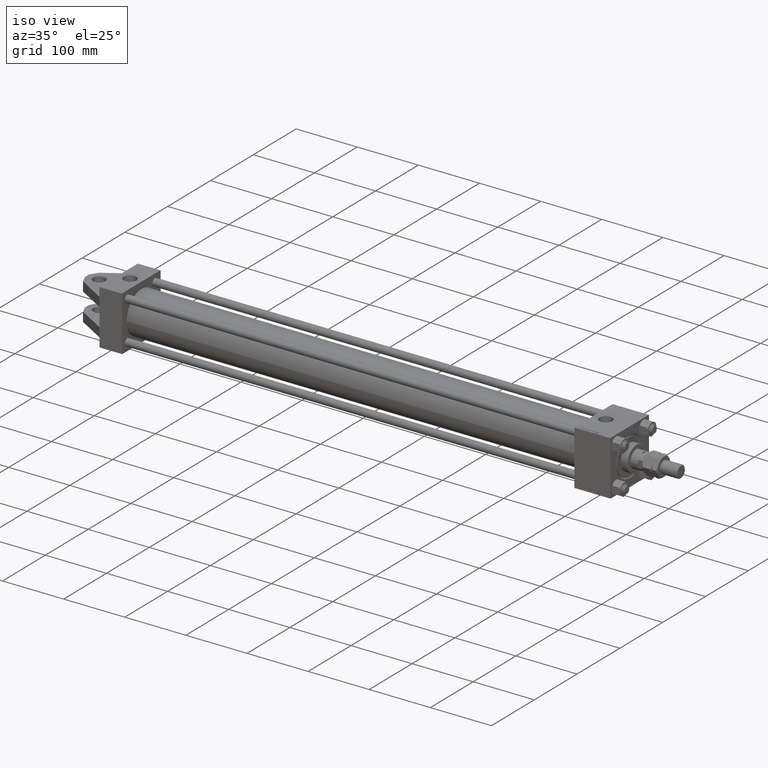
[diagram: clean part render]
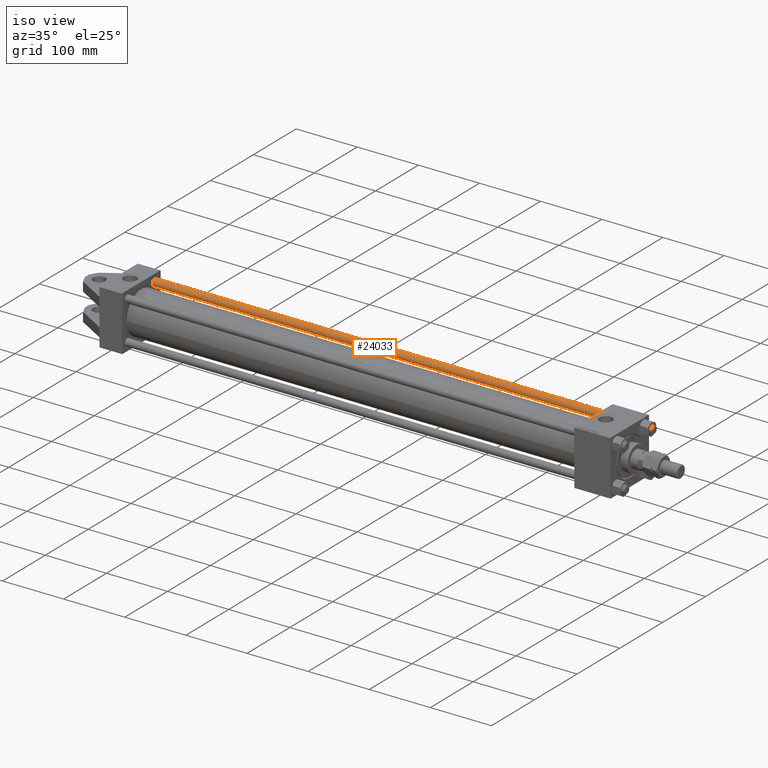
[diagram: same view with one face highlighted and labeled with its STEP entity id]
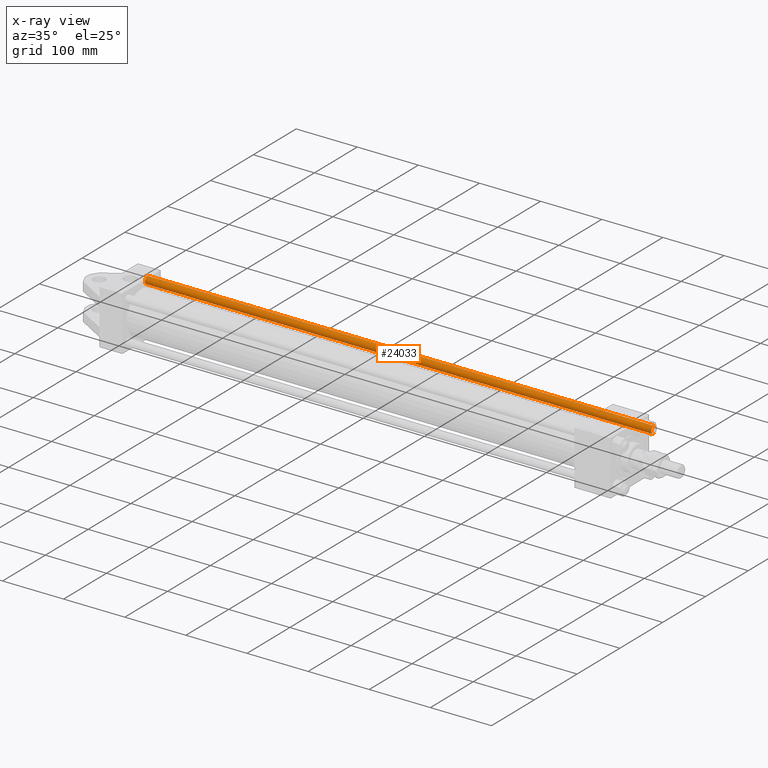
[diagram: x-ray of the same camera — body ghosted, the highlighted face saturated]
A machine part, iso view. The second image highlights one B-rep face of the part: STEP entity #24033.
The next image is the same camera in x-ray: the body ghosted, the highlighted face saturated — about 0% of this face is hidden behind the body in this view.
In plain terms, the highlighted cylindrical surface (edge-blend (fillet) strip) has radius 6 mm, axis along (-1, 0, -0).
Its self-contained STEP definition (entity closure, byte-faithful):
#200 = CARTESIAN_POINT ( 'NONE',  ( 6.000000000000000888, 7.347880794884120722E-16, 830.0000000000000000 ) ) ;
#1206 = CARTESIAN_POINT ( 'NONE',  ( 0.000000000000000000, 0.000000000000000000, 0.5000000000001669775 ) ) ;
#3835 = DIRECTION ( 'NONE',  ( -0.000000000000000000, -0.000000000000000000, -1.000000000000000000 ) ) ;
#8738 = DIRECTION ( 'NONE',  ( 1.000000000000000000, 0.000000000000000000, 0.000000000000000000 ) ) ;
#9521 = AXIS2_PLACEMENT_3D ( 'NONE', #11380, #15781, #38652 ) ;
#11380 = CARTESIAN_POINT ( 'NONE',  ( 0.000000000000000000, 0.000000000000000000, 829.5000000000001137 ) ) ;
#11995 = CIRCLE ( 'NONE', #9521, 6.000000000000000888 ) ;
#14285 = CARTESIAN_POINT ( 'NONE',  ( 6.000000000000000888, 7.347880794884120722E-16, 829.5000000000001137 ) ) ;
#15781 = DIRECTION ( 'NONE',  ( 0.000000000000000000, 0.000000000000000000, -1.000000000000000000 ) ) ;
#15797 = ORIENTED_EDGE ( 'NONE', *, *, #43079, .T. ) ;
#16284 = DIRECTION ( 'NONE',  ( -0.000000000000000000, -0.000000000000000000, 1.000000000000000000 ) ) ;
#19164 = DIRECTION ( 'NONE',  ( -1.000000000000000000, 0.000000000000000000, 0.000000000000000000 ) ) ;
#20295 = CARTESIAN_POINT ( 'NONE',  ( -6.000000000000000888, 0.000000000000000000, 829.5000000000001137 ) ) ;
#20930 = VECTOR ( 'NONE', #35509, 1000.000000000000000 ) ;
#23819 = CYLINDRICAL_SURFACE ( 'NONE', #33452, 6.000000000000000888 ) ;
#24033 = ADVANCED_FACE ( 'NONE', ( #46945 ), #23819, .T. ) ;
#25110 = DIRECTION ( 'NONE',  ( -0.000000000000000000, -0.000000000000000000, -1.000000000000000000 ) ) ;
#26492 = ORIENTED_EDGE ( 'NONE', *, *, #43148, .T. ) ;
#26920 = VECTOR ( 'NONE', #25110, 1000.000000000000000 ) ;
#27210 = EDGE_CURVE ( 'NONE', #39138, #30707, #30220, .T. ) ;
#29938 = VERTEX_POINT ( 'NONE', #14285 ) ;
#30220 = CIRCLE ( 'NONE', #50933, 6.000000000000000888 ) ;
#30707 = VERTEX_POINT ( 'NONE', #43898 ) ;
#33452 = AXIS2_PLACEMENT_3D ( 'NONE', #51097, #3835, #19164 ) ;
#33864 = EDGE_CURVE ( 'NONE', #29938, #30707, #36018, .T. ) ;
#34935 = EDGE_LOOP ( 'NONE', ( #37764, #15797, #26492, #37068 ) ) ;
#35509 = DIRECTION ( 'NONE',  ( -0.000000000000000000, -0.000000000000000000, -1.000000000000000000 ) ) ;
#36018 = LINE ( 'NONE', #200, #20930 ) ;
#36280 = LINE ( 'NONE', #43817, #26920 ) ;
#36426 = CARTESIAN_POINT ( 'NONE',  ( -6.000000000000000888, 0.000000000000000000, 0.5000000000001669775 ) ) ;
#37068 = ORIENTED_EDGE ( 'NONE', *, *, #27210, .T. ) ;
#37764 = ORIENTED_EDGE ( 'NONE', *, *, #33864, .F. ) ;
#38652 = DIRECTION ( 'NONE',  ( 1.000000000000000000, 0.000000000000000000, 0.000000000000000000 ) ) ;
#39138 = VERTEX_POINT ( 'NONE', #36426 ) ;
#43079 = EDGE_CURVE ( 'NONE', #29938, #50436, #11995, .T. ) ;
#43148 = EDGE_CURVE ( 'NONE', #50436, #39138, #36280, .T. ) ;
#43817 = CARTESIAN_POINT ( 'NONE',  ( -6.000000000000000888, 0.000000000000000000, 830.0000000000000000 ) ) ;
#43898 = CARTESIAN_POINT ( 'NONE',  ( 6.000000000000000888, 7.347880794884120722E-16, 0.5000000000001669775 ) ) ;
#46945 = FACE_OUTER_BOUND ( 'NONE', #34935, .T. ) ;
#50436 = VERTEX_POINT ( 'NONE', #20295 ) ;
#50933 = AXIS2_PLACEMENT_3D ( 'NONE', #1206, #16284, #8738 ) ;
#51097 = CARTESIAN_POINT ( 'NONE',  ( 0.000000000000000000, 0.000000000000000000, 830.0000000000000000 ) ) ;